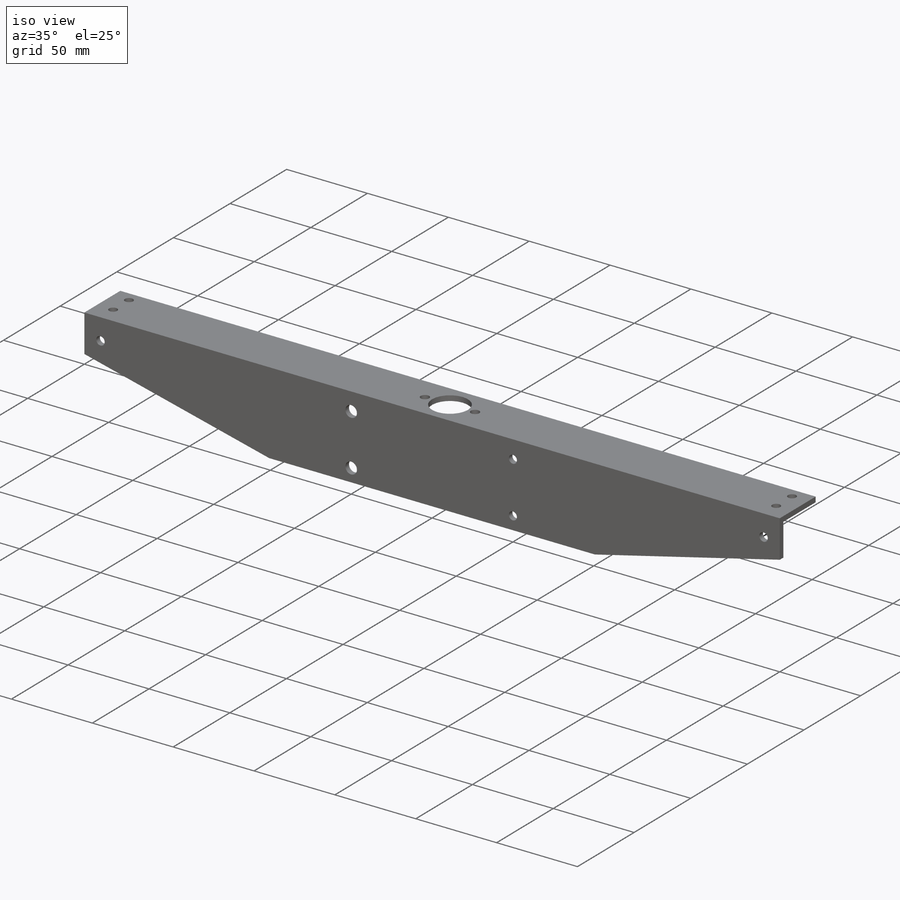
[diagram: iso view]
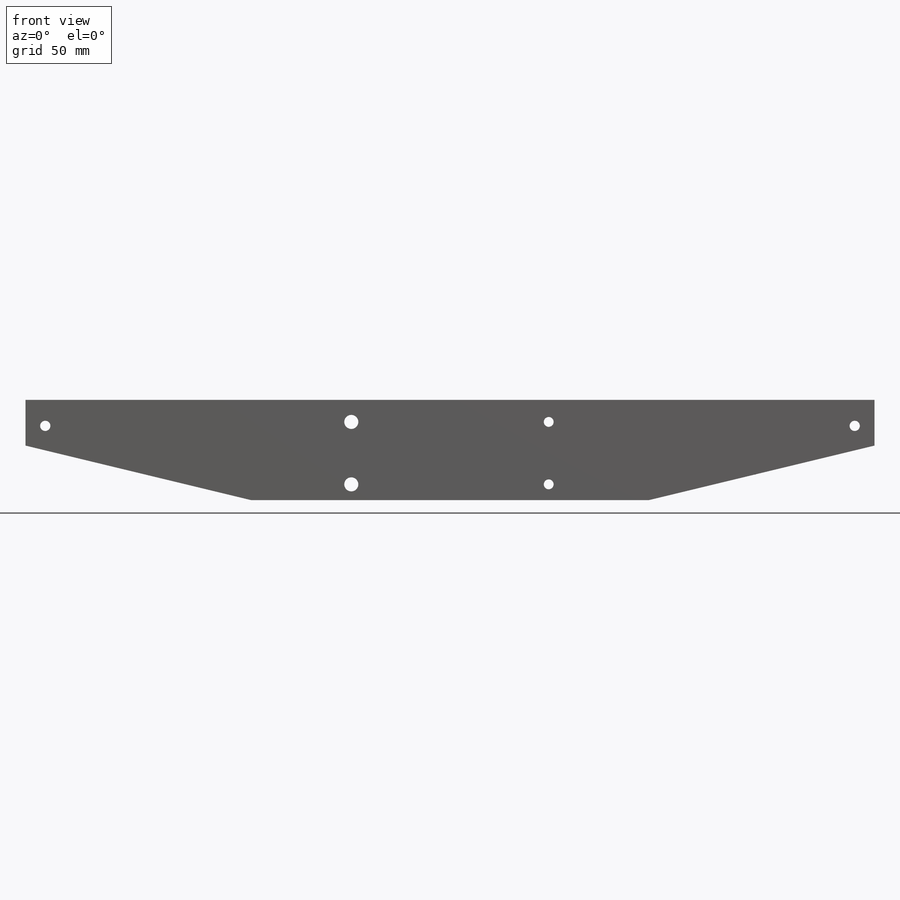
[diagram: front view]
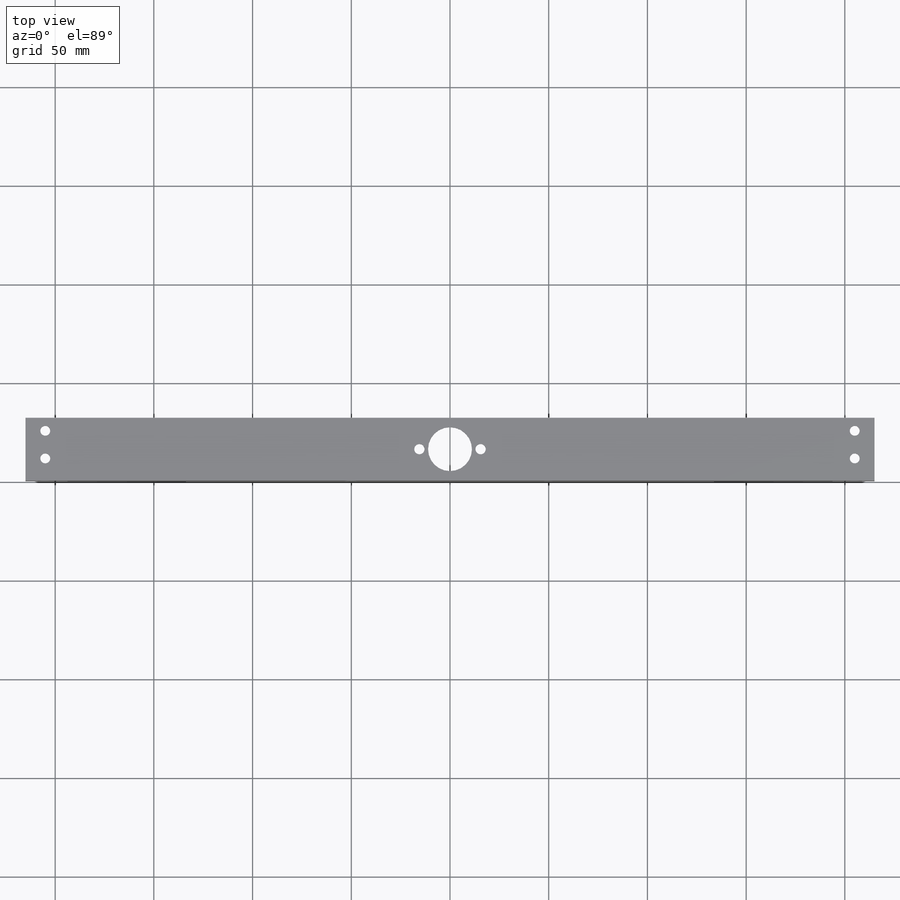
[diagram: top view]
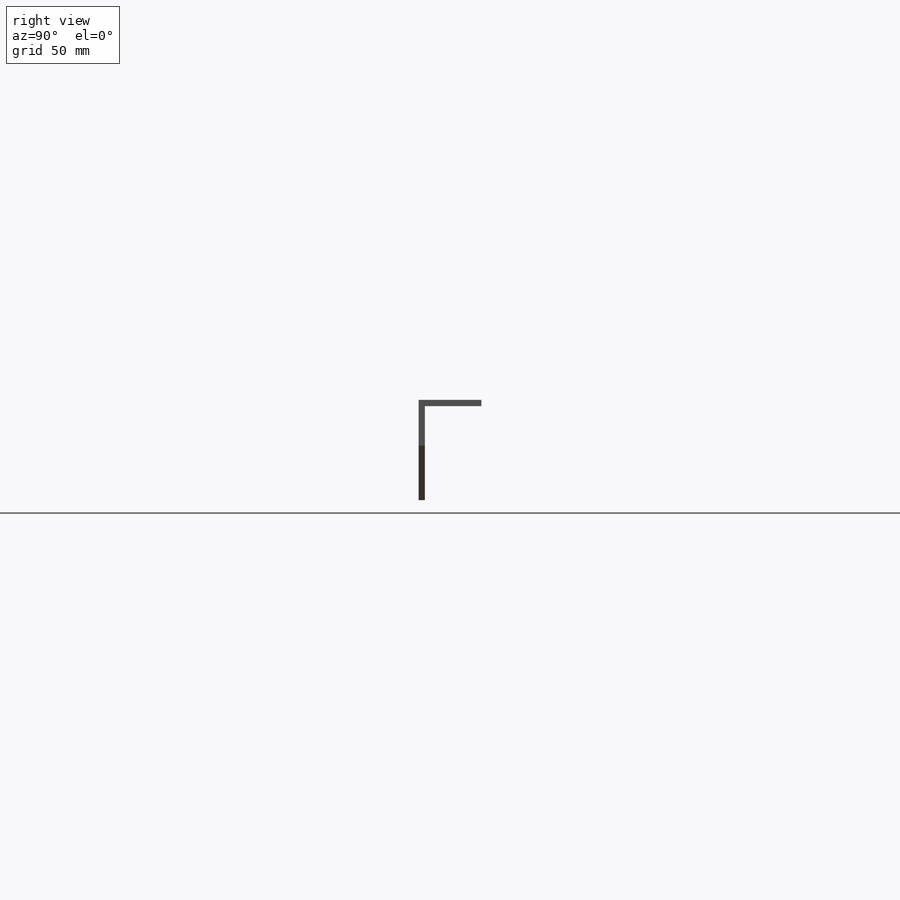
[diagram: right view]
SOLIDWORKS PART (.sldprt)
format: sldprt  version: not decoded by parser v0  size: 267,776 bytes
history: native  units: mm
features: sketch x7, cut_extrude x6, material x1, extrude x1 (+13 scaffold rows collapsed)
feature tree (28):
  scaffold x13  (default folders/planes/origin — collapsed)
  material  "6063-T5"
  sketch  "Sketch1"  dims[D1=31.75mm D2=3.175mm D3=3.175mm D4=50.8mm]
  extrude  "Boss-Extrude1"  Depth=430mm
  sketch  "Sketch2"  dims[c1.D1=5.0mm c1.D2=5.0mm c1.D3=7.14mm c1.D4=7.14mm c1.D7=5.0mm c1.D9=7.14mm c1.D5=100.0mm c1.D6=50.0mm c2.D7=60.0mm c2.D8=60.0mm c2.D9=28.25mm c2.D5=50.0mm c2.D6=50.0mm c3.D9=8.0mm c3.D10=~100.60866mm c3.D7=8.0mm]
  cut_extrude  "Cut-Extrude1"  [1 undecoded]
  sketch  "Sketch3"  dims[c1.D3=5.0mm c1.D1=69.85mm c1.D2=114.3mm c1.D4=10.0mm c1.D5=10.0mm c2.D1=20.0mm]
  cut_extrude  "Cut-Extrude2"  Depth=3.175mm
  sketch  "Sketch4"  dims[D1=5.0mm D2=5.0mm D3=10.0mm D4=11.176mm D5=14.0mm]
  cut_extrude  "Cut-Extrude3"  Depth=3.175mm
  sketch  "Sketch5"  dims[c1.D1=22.225mm c1.D2=38.1mm c1.D3=19.05mm c1.D4=38.1mm c2.D3=15.875mm]
  cut_extrude  "Cut-Extrude4"  [1 undecoded]
  sketch  "Sketch6"  dims[c1.D1=5.2mm c1.D3=5.2mm c1.D2=10.0mm c2.D3=13.175mm]
  cut_extrude  "Cut-Extrude5"  [1 undecoded]
  sketch  "Sketch7"  dims[D1=5.2mm]
  cut_extrude  "Cut-Extrude6"  [1 undecoded]
decode coverage: 10 of 14 modeling features carry decoded parameters
note: ~ marks probable driven/reference dimensions
note: 4 parameter values undecoded
summary: no parameter record found for 4 features
note: suppression state not decoded; provenance and decode notes live in map.json
